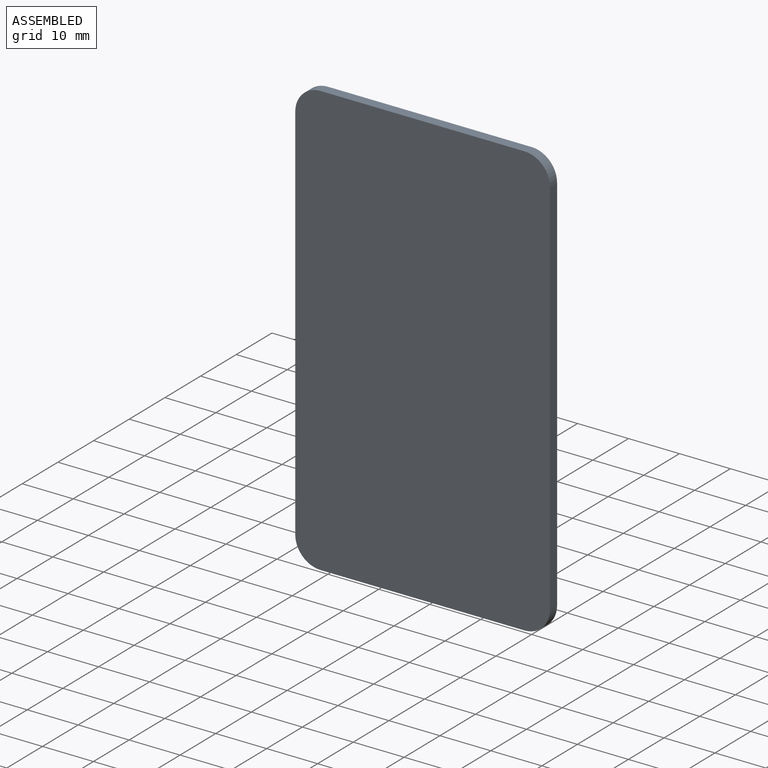
[diagram: assembled view]
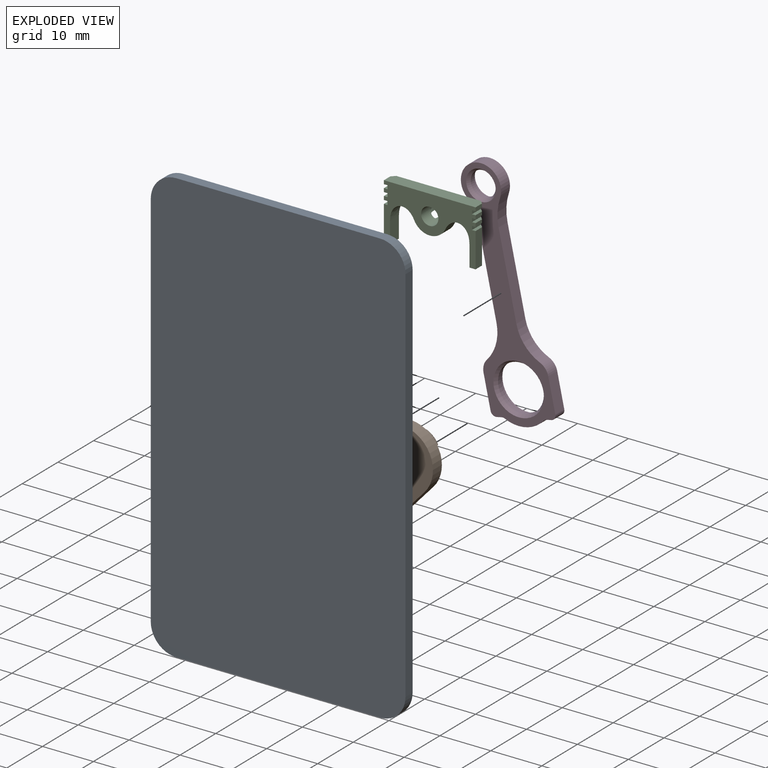
[diagram: exploded view]
GUIDED TOUR — MATED ASSEMBLY (Onshape document 1742f15612c6892b2fa58c6d, AutoMate assembly 1742f15612c6892b2fa58c6d_eaef22429a1dc8ec00ff99ad_a0c42ffdb348022e97a1b709_default)

This assembly has 4 components, labeled P0..P3 below (a component is one placed occurrence of a part; the same part can appear more than once), held together by 7 mates. A mate is a constraint between two components; its type names the relative motion it leaves free:
  CYLINDRICAL — leaves both rotation about and translation along the listed axis free,
  PLANAR — leaves sliding in the plane through the listed point (normal = the listed direction) and rotation about that normal free.
Axis/direction vectors are unit vectors and 'through' points are millimeter coordinates, both in the assembly's world frame.

MATES
  1. CYLINDRICAL "Cylindrical 4": P3 <-> P1, axis (0.000, 1.000, 0.000) through (7.40, 3.53, 8.14) mm
  2. CYLINDRICAL "Cylindrical 3": P1 <-> P0, axis (0.000, 1.000, 0.000) through (0.00, 1.00, 0.00) mm
  3. PLANAR "Planar 3": P1 <-> P3, direction (0.000, 1.000, 0.000) through (-1.61, 2.50, -1.77) mm
  4. PLANAR "Planar 4": P2 <-> P0, direction (0.000, -1.000, 0.000) through (0.00, 0.00, 42.89) mm
  5. PLANAR "Planar 2": P2 <-> P3, direction (0.000, 1.000, 0.000) through (0.00, 2.50, 43.38) mm
  6. PLANAR "Planar 1": P2 <-> P0, direction (-1.000, 0.000, 0.000) through (-9.00, 0.90, 38.75) mm
  7. CYLINDRICAL "Cylindrical 2": P3 <-> P2, axis (0.000, 1.000, 0.000) through (0.00, 3.90, 42.35) mm

ASSEMBLY ORDER
  1. P2 — the base component [order heuristic]
  2. P0 [order heuristic]
  3. P3 [order heuristic]
  4. P1 [order heuristic]
Order-tag legend:
  [order heuristic] — this assembly is geometrically interlocked (no collision-free removal order exists), so components are listed in mate-graph order; insertion feasibility is not verified.

Of the 4 components, 1 carries the full construction recipe — the FeatureScript program that regenerates the part's solid from scratch; the rest are supplied as boundary geometry only.
Each toured component is shown spotlighted twice — in the assembled view, then in the exploded view, where a leader line traces a displaced component back to its assembled socket (saturated green if recipe-attached, orange if geometry-only; every other component desaturated gray) — followed by its recipe or geometry summary and the mates that hold it.
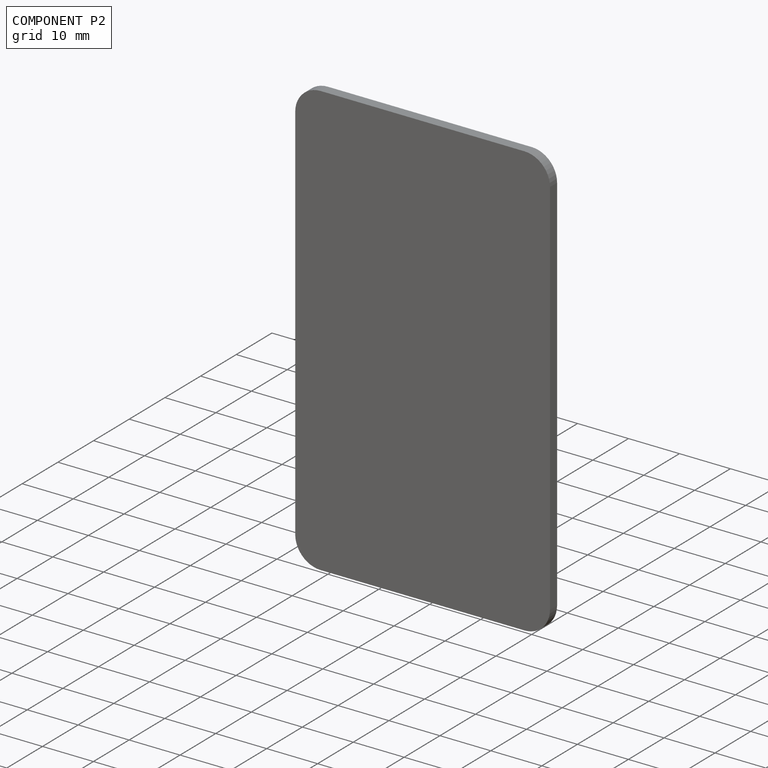
[diagram: component P2 — assembled]
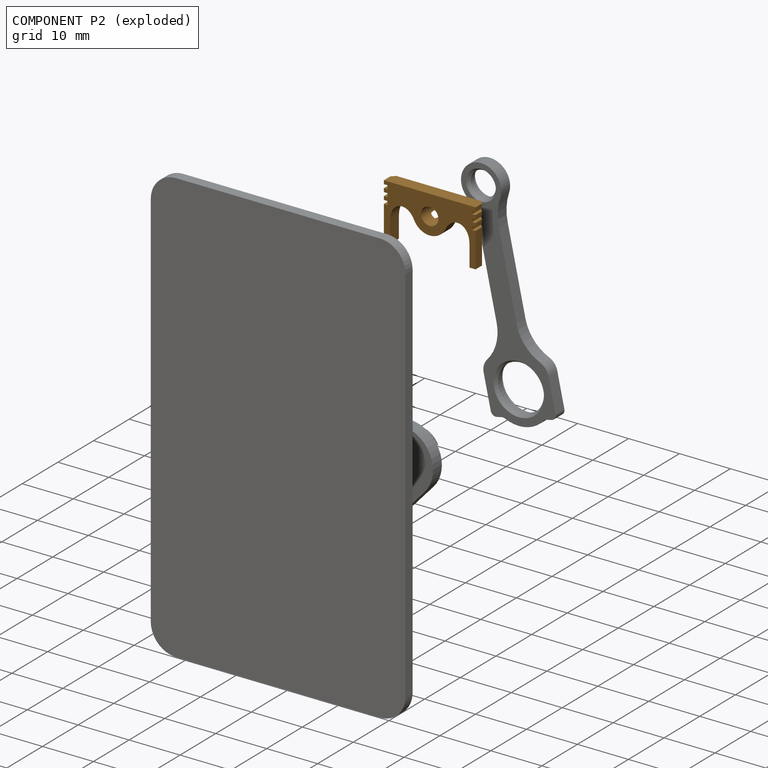
[diagram: component P2 — exploded]
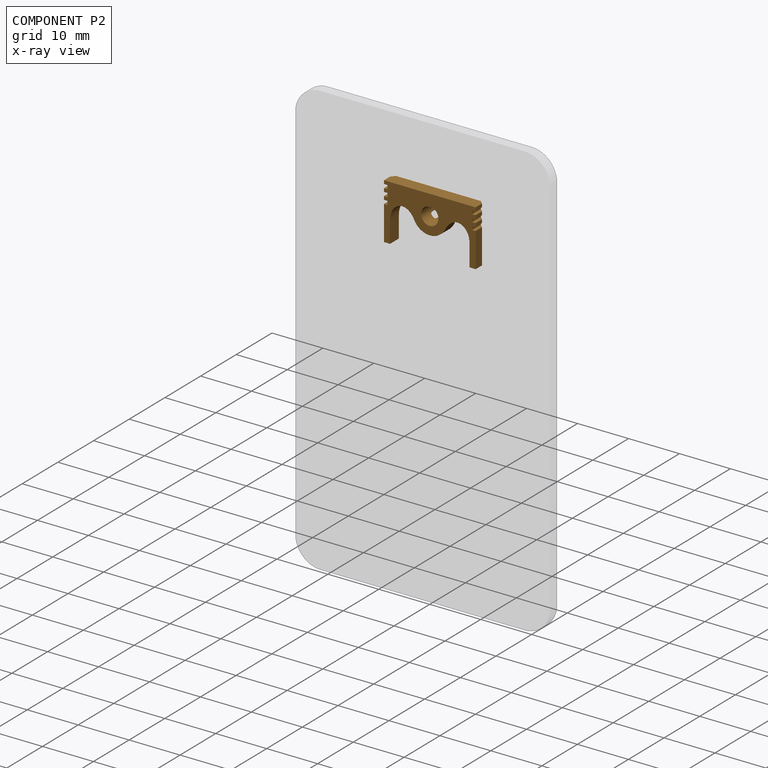
[diagram: component P2 — x-ray view]
COMPONENT P2 — geometry summary (no construction recipe available for this part):
  bounding box: 18.0 x 11.0 x 5.0 mm
  B-rep topology: 1 solid, 89 faces, 482 edges
  volume: 249 mm^3 (25% of its bounding box)
  symmetry: mirror-symmetric across its x mid-plane
Held by: PLANAR mate "Planar 4" to P0; PLANAR mate "Planar 2" to P3; PLANAR mate "Planar 1" to P0; CYLINDRICAL mate "Cylindrical 2" to P3.
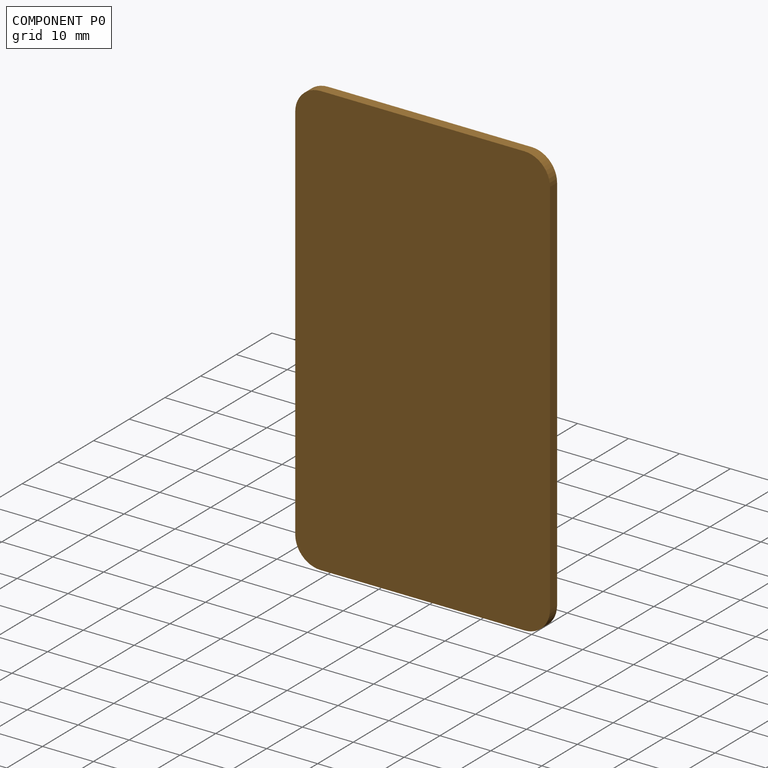
[diagram: component P0 — assembled]
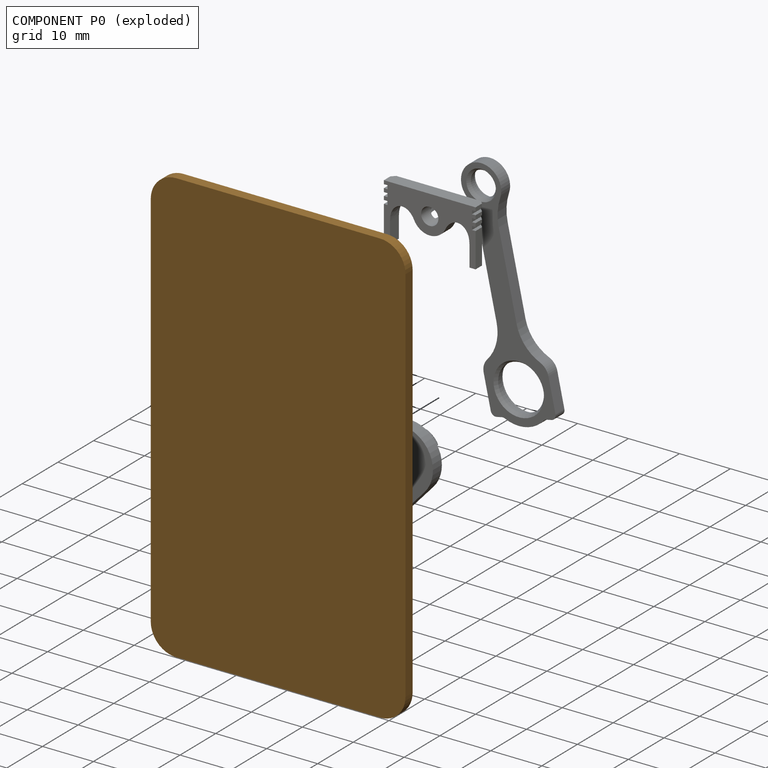
[diagram: component P0 — exploded]
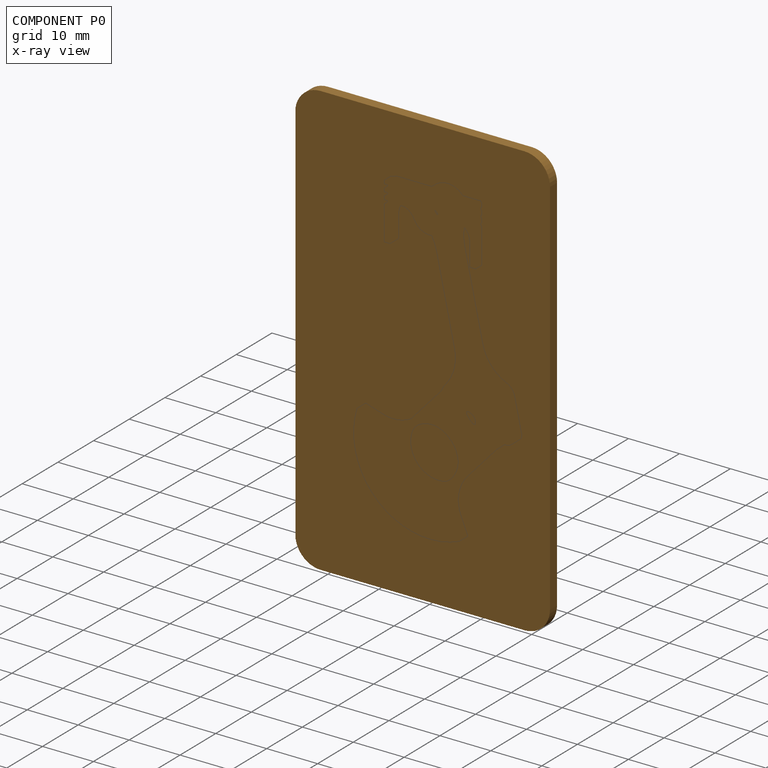
[diagram: component P0 — x-ray view]
COMPONENT P0 — geometry summary (no construction recipe available for this part):
  bounding box: 85.0 x 50.0 x 5.1 mm
  B-rep topology: 1 solid, 146 faces, 762 edges
  volume: 8818 mm^3 (41% of its bounding box)
Held by: CYLINDRICAL mate "Cylindrical 3" to P1; PLANAR mate "Planar 4" to P2; PLANAR mate "Planar 1" to P2.
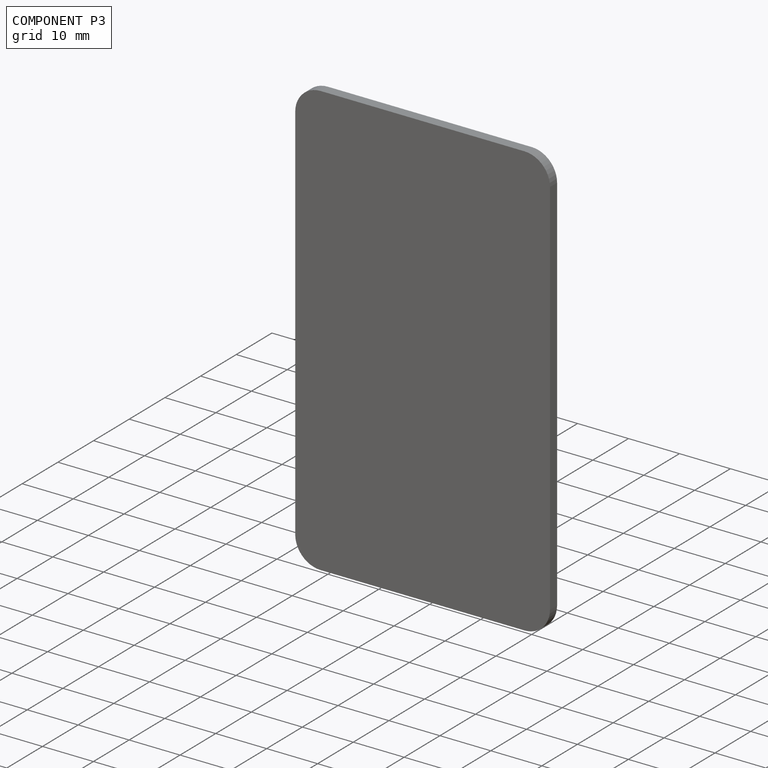
[diagram: component P3 — assembled]
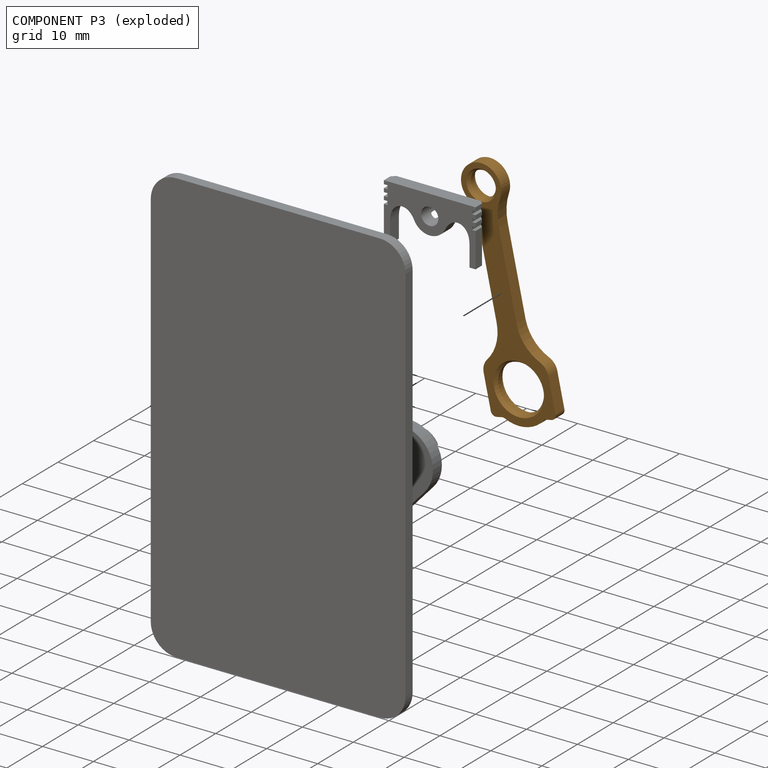
[diagram: component P3 — exploded]
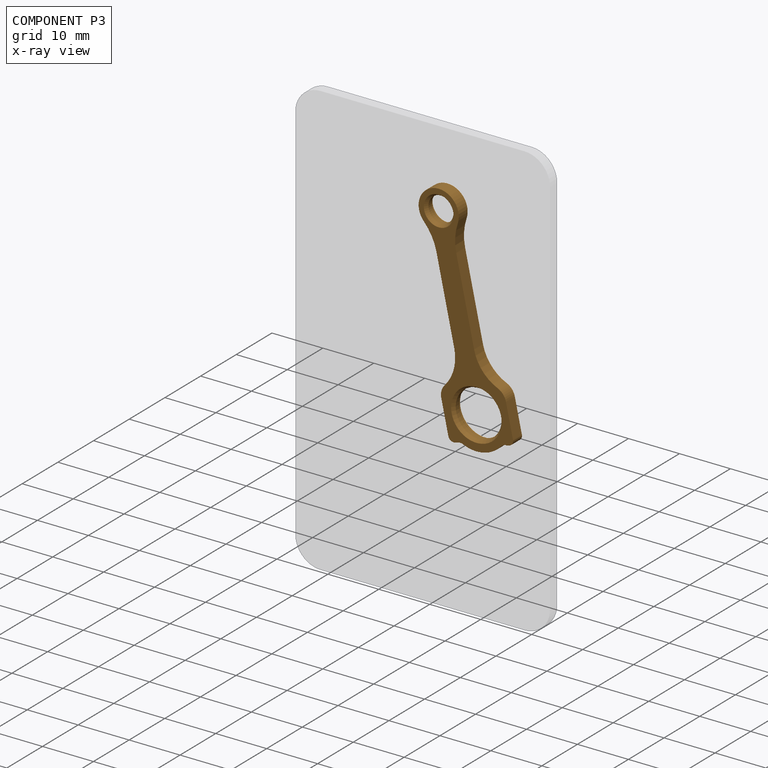
[diagram: component P3 — x-ray view]
COMPONENT P3 — geometry summary (no construction recipe available for this part):
  bounding box: 45.5 x 13.0 x 2.5 mm
  B-rep topology: 1 solid, 39 faces, 198 edges
  volume: 450 mm^3 (30% of its bounding box)
  symmetry: mirror-symmetric across its x mid-plane
Held by: CYLINDRICAL mate "Cylindrical 4" to P1; PLANAR mate "Planar 3" to P1; PLANAR mate "Planar 2" to P2; CYLINDRICAL mate "Cylindrical 2" to P2.
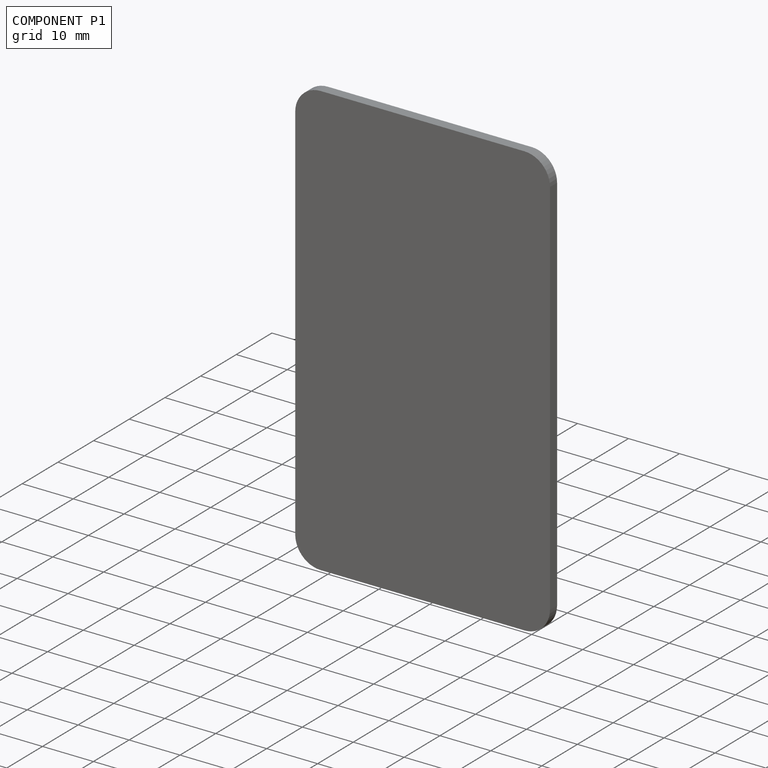
[diagram: component P1 — assembled]
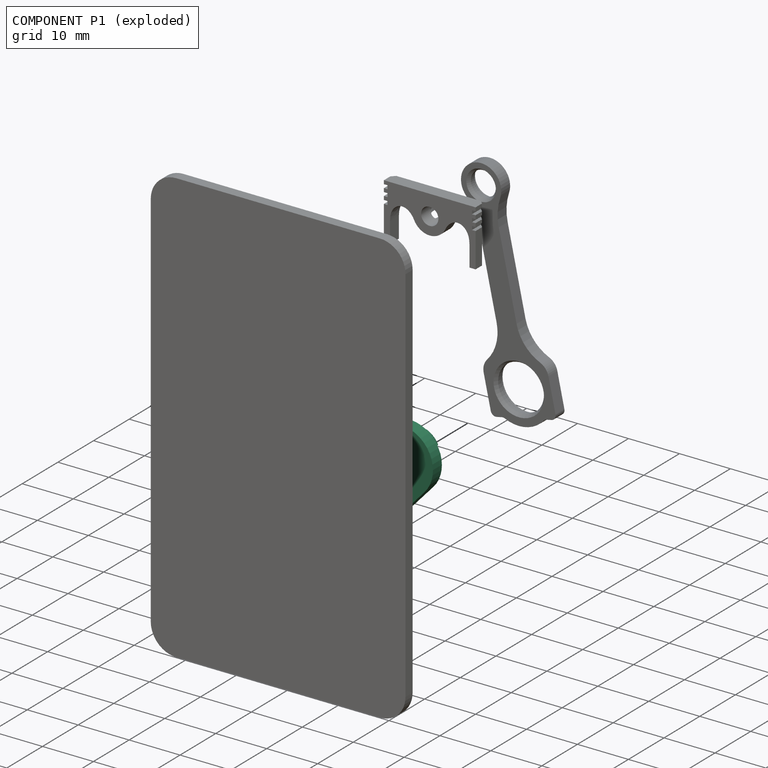
[diagram: component P1 — exploded]
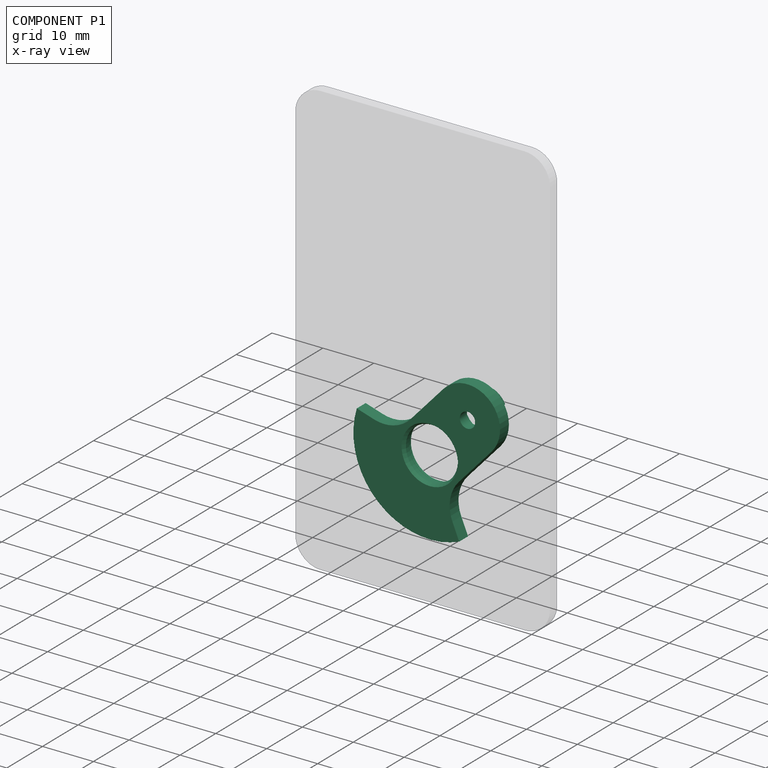
[diagram: component P1 — x-ray view]
COMPONENT P1 — recipe-attached (CADFS 00269362, mesh-verified: the recipe's output STEP matches this component's geometry to below the mesh-comparison resolution (tessellation chordal tolerance ~0.0639 mm)).
Held by: CYLINDRICAL mate "Cylindrical 4" to P3; CYLINDRICAL mate "Cylindrical 3" to P0; PLANAR mate "Planar 3" to P3.
Construction recipe (FeatureScript — the CAD program that rebuilds this solid; sketch coordinates are in the units given by the * unit suffixes, e.g. mm):

FeatureScript 1540;
import(path : "onshape/std/geometry.fs", version : "1540.0");
import(path : "onshape/std/common.fs", version : "1540.0");
const mm = millimeter;
const VERTEX = EntityType.VERTEX;
const EDGE = EntityType.EDGE;
const FACE = EntityType.FACE;
const BODY = EntityType.BODY;
function v(x, y){return vector(x, y);}
function OD(order){return orderDisambiguation(order);}
function OSD(set){return originalSetDisambiguation(set);}
function TD(topology){return topologyDisambiguation(topology);}
function TDD(query){return trueDependencyDisambiguation(query);}
function sQuery(a, b, c) {return sketchEntityQuery(a, b, c);}

annotation { "Feature Type Name" : "Feature", "Feature Type Description" : "" }
export const myFeature = defineFeature(function(context is Context, id is Id, definition is map)
    precondition{}
    {
        {
            var Q0;
            Q0=qCreatedBy(makeId("Front.planeOp"),FACE);
            var sketch = newSketch(context, id + "F0", { "sketchPlane" : qUnion([Q0])});
            skCircle(sketch, "E0", {"center": v(0, 0) * mm, "radius": 4.4 * mm});
            skLineSegment(sketch, "E1", {"start": v(0, 0) * mm, "end": v(0, 25.39) * mm, "construction": true});
            skCircle(sketch, "E2", {"center": v(0, -11) * mm, "radius": 5.1 * mm});
            skArc(sketch, "E3", {"start": v(-13.6, -17.34) * mm, "mid": v(0, -26) * mm, "end": v(13.6, -17.34) * mm});
            skLineSegment(sketch, "E4", {"start": v(-10.44, -15.87) * mm, "end": v(-13.6, -17.34) * mm});
            skLineSegment(sketch, "E5", {"start": v(-13.6, -17.34) * mm, "end": v(-10.44, -15.87) * mm});
            skLineSegment(sketch, "E6", {"start": v(13.6, -17.34) * mm, "end": v(10.44, -15.87) * mm});
            skLineSegment(sketch, "E7", {"start": v(-6.4, 0) * mm, "end": v(-6.4, -9.52) * mm});
            skArc(sketch, "E8", {"start": v(-10.44, -15.87) * mm, "mid": v(-7.5, -13.29) * mm, "end": v(-6.4, -9.52) * mm});
            skLineSegment(sketch, "E9", {"start": v(6.4, 0) * mm, "end": v(6.4, -9.52) * mm});
            skArc(sketch, "E10", {"start": v(6.4, -9.52) * mm, "mid": v(7.5, -13.29) * mm, "end": v(10.44, -15.87) * mm});
            skArc(sketch, "E11.trimOffspring", {"start": v(6.4, 0) * mm, "mid": v(0, 6.4) * mm, "end": v(-6.4, 0) * mm});
            skSolve(sketch);
        }
        {
            var Q0;
            Q0=makeQuery(id+"F0.imprint","IMPRINT",FACE,{"disambiguationData":[TD([[makeQuery(id+"F0.imprint","IMPRINT",EDGE,{"derivedFrom":sQuery(id+"F0.wireOp",EDGE,"E0")}),-1.0]])]});
            var Q1;
            Q1=makeQuery(id+"F0.imprint","IMPRINT",FACE,{"disambiguationData":[TD([[makeQuery(id+"F0.imprint","IMPRINT",EDGE,{"derivedFrom":sQuery(id+"F0.wireOp",EDGE,"E0")}),1.0]])]});
            extrude(context, id + "F1", {"entities" : qUnion([Q0, Q1]), "depth" : 2.5 * mm});
        }
        {
            var Q0;
            Q0=qCreatedBy(makeId("Top.planeOp"),FACE);
            cPlane(context, id + "F2", {"entities" : qUnion([Q0]), "cplaneType" : CPlaneType.OFFSET, "offset" : 11 * mm, "oppositeDirection" : true, "width" : 150 * mm, "height" : 150 * mm});
        }
        {
            var Q0;
            Q0=qCreatedBy(id+"F2.planeOp",FACE);
            var sketch = newSketch(context, id + "F3", { "sketchPlane" : qUnion([Q0])});
            skLineSegment(sketch, "E12.bottom", {"start": v(5, -0.8) * mm, "end": v(5.45, -0.8) * mm});
            skLineSegment(sketch, "E12.top", {"start": v(5, 0) * mm, "end": v(5.45, 0) * mm});
            skLineSegment(sketch, "E12.left", {"start": v(5, -0.8) * mm, "end": v(5, 0) * mm});
            skLineSegment(sketch, "E12.right", {"start": v(5.45, -0.8) * mm, "end": v(5.45, 0) * mm});
            skLineSegment(sketch, "E13", {"start": v(0, 0) * mm, "end": v(0, 6.8) * mm, "construction": true});
            skSolve(sketch);
        }
        {
            var Q0;
            Q0=makeQuery(id+"F3.imprint","IMPRINT",FACE,{"disambiguationData":[TD([[makeQuery(id+"F3.imprint","IMPRINT",EDGE,{"derivedFrom":sQuery(id+"F3.wireOp",EDGE,"E12.bottom")}),1.0]])]});
            var Q1;
            Q1=sQuery(id+"F3.wireOp",EDGE,"E13");
            revolve(context, id + "F4", {"operationType" : NewBodyOperationType.REMOVE, "entities" : qUnion([Q0]), "axis" : qUnion([Q1]), "revolveType" : RevolveType.FULL, "oppositeDirection" : true});
        }
        {
            var Q0;
            Q0=makeQuery(id+"F1.opExtrude","CAP_EDGE",EDGE,{"disambiguationData":[OSD([sQuery(id+"F0.wireOp",EDGE,"E2")])],"isStart":false});
            chamfer(context, id + "F5", {"entities" : qUnion([Q0]), "chamferType" : ChamferType.OFFSET_ANGLE, "width" : 0.6 * mm, "oppositeDirection" : false, "angle" : 35 * degree, "tangentPropagation" : true});
        }
        {
            var Q0;
            Q0=makeQuery(id+"F4.boolean.opBoolean","INTERSECT",EDGE,{"derivedFrom":[makeQuery(id+"F1.opExtrude","SWEPT_FACE",FACE,{"disambiguationData":[OSD([sQuery(id+"F0.wireOp",EDGE,"E2")])]}),makeQuery(id+"F4.opRevolve","SWEPT_FACE",FACE,{"disambiguationData":[OSD([sQuery(id+"F3.wireOp",EDGE,"E12.bottom")])]})]});
            fillet(context, id + "F6", {"entities" : qUnion([Q0]), "radius" : 0.3 * mm, "tangentPropagation" : true, "allowEdgeOverflow" : false});
        }
        {
            var Q0;
            Q0=qCreatedBy(makeId("Top.planeOp"),FACE);
            var sketch = newSketch(context, id + "F7", { "sketchPlane" : qUnion([Q0])});
            skLineSegment(sketch, "E14.bottom", {"start": v(3.5, -2.5) * mm, "end": v(4.4, -2.5) * mm});
            skLineSegment(sketch, "E14.top", {"start": v(3.5, 2.5) * mm, "end": v(4.4, 2.5) * mm});
            skLineSegment(sketch, "E14.left", {"start": v(3.5, -2.5) * mm, "end": v(3.5, 2.5) * mm});
            skLineSegment(sketch, "E14.right", {"start": v(4.4, -2.5) * mm, "end": v(4.4, 1.8) * mm});
            skLineSegment(sketch, "E15", {"start": v(0, 0) * mm, "end": v(0, 10.72) * mm, "construction": true});
            skLineSegment(sketch, "E16.bottom", {"start": v(4.4, 2.5) * mm, "end": v(4.8, 2.5) * mm});
            skLineSegment(sketch, "E16.top", {"start": v(4.4, 1.8) * mm, "end": v(4.8, 1.8) * mm});
            skLineSegment(sketch, "E16.right", {"start": v(4.8, 2.5) * mm, "end": v(4.8, 1.8) * mm});
            skSolve(sketch);
        }
        {
            var Q0;
            Q0=makeQuery(id+"F7.imprint","IMPRINT",FACE,{"disambiguationData":[TD([[makeQuery(id+"F7.imprint","IMPRINT",EDGE,{"derivedFrom":sQuery(id+"F7.wireOp",EDGE,"E14.bottom")}),1.0]])]});
            var Q1;
            Q1=sQuery(id+"F7.wireOp",EDGE,"E15");
            revolve(context, id + "F8", {"operationType" : NewBodyOperationType.ADD, "entities" : qUnion([Q0]), "axis" : qUnion([Q1]), "revolveType" : RevolveType.FULL});
        }
        {
            var Q0;
            Q0=makeQuery(id+"F8.opRevolve","SWEPT_EDGE",EDGE,{"disambiguationData":[OSD([sQuery(id+"F7.wireOp",EDGE,"E14.right"),sQuery(id+"F7.wireOp",EDGE,"E16.top")])]});
            fillet(context, id + "F9", {"entities" : qUnion([Q0]), "radius" : 0.3 * mm, "tangentPropagation" : true, "allowEdgeOverflow" : false});
        }
        {
            var Q0;
            Q0=makeQuery(id+"F8.opRevolve","SWEPT_EDGE",EDGE,{"disambiguationData":[OSD([sQuery(id+"F7.wireOp",EDGE,"E14.top"),sQuery(id+"F7.wireOp",EDGE,"E14.left")])]});
            chamfer(context, id + "F10", {"entities" : qUnion([Q0]), "chamferType" : ChamferType.TWO_OFFSETS, "width1" : 0.5 * mm, "oppositeDirection" : false, "width2" : 4 * mm, "tangentPropagation" : true});
        }
        {
            var Q0;
            Q0=makeQuery(id+"F8.opRevolve","SWEPT_EDGE",EDGE,{"disambiguationData":[OSD([sQuery(id+"F7.wireOp",EDGE,"E16.bottom"),sQuery(id+"F7.wireOp",EDGE,"E16.right")])]});
            chamfer(context, id + "F11", {"entities" : qUnion([Q0]), "chamferType" : ChamferType.OFFSET_ANGLE, "width" : 0.55 * mm, "oppositeDirection" : false, "angle" : 35 * degree, "tangentPropagation" : true});
        }
        {
            var Q0;
            Q0=qCreatedBy(makeId("Front.planeOp"),FACE);
            var sketch = newSketch(context, id + "F12", { "sketchPlane" : qUnion([Q0])});
            skCircle(sketch, "E17", {"center": v(0, 0) * mm, "radius": 7.5 * mm});
            skLineSegment(sketch, "E18", {"start": v(0, 0) * mm, "end": v(0, 10.84) * mm, "construction": true});
            skLineSegment(sketch, "E19", {"start": v(0, 0) * mm, "end": v(-10.38, 0) * mm, "construction": true});
            skLineSegment(sketch, "E20", {"start": v(0, 0) * mm, "end": v(-2.57, 7.05) * mm});
            skLineSegment(sketch, "E21", {"start": v(0, 0) * mm, "end": v(-4.82, 5.75) * mm});
            skLineSegment(sketch, "E22.1.0", {"start": v(0, 0) * mm, "end": v(-7.39, 1.3) * mm});
            skLineSegment(sketch, "E22.1.1", {"start": v(0, 0) * mm, "end": v(-7.39, -1.3) * mm});
            skLineSegment(sketch, "E22.2.0", {"start": v(0, 0) * mm, "end": v(-4.82, -5.75) * mm});
            skLineSegment(sketch, "E22.2.1", {"start": v(0, 0) * mm, "end": v(-2.57, -7.05) * mm});
            skLineSegment(sketch, "E22.3.0", {"start": v(0, 0) * mm, "end": v(2.57, -7.05) * mm});
            skLineSegment(sketch, "E22.3.1", {"start": v(0, 0) * mm, "end": v(4.82, -5.75) * mm});
            skLineSegment(sketch, "E22.4.0", {"start": v(0, 0) * mm, "end": v(7.39, -1.3) * mm});
            skLineSegment(sketch, "E22.4.1", {"start": v(0, 0) * mm, "end": v(7.39, 1.3) * mm});
            skLineSegment(sketch, "E22.5.0", {"start": v(0, 0) * mm, "end": v(4.82, 5.75) * mm});
            skLineSegment(sketch, "E22.5.1", {"start": v(0, 0) * mm, "end": v(2.57, 7.05) * mm});
            skSolve(sketch);
        }
        {
            var Q0;
            {var subQ0=sQuery(id+"F12.wireOp",EDGE,"E22.5.0");Q0=makeQuery(id+"F12.imprint","IMPRINT",FACE,{"disambiguationData":[TD([[makeQuery(id+"F12.imprint","IMPRINT",EDGE,{"derivedFrom":subQ0}),1.0]])]});}
            var Q1;
            {var subQ0=sQuery(id+"F12.wireOp",EDGE,"E20");Q1=makeQuery(id+"F12.imprint","IMPRINT",FACE,{"disambiguationData":[TD([[makeQuery(id+"F12.imprint","IMPRINT",EDGE,{"derivedFrom":subQ0}),1.0]])]});}
            var Q2;
            {var subQ0=sQuery(id+"F12.wireOp",EDGE,"E22.4.0");Q2=makeQuery(id+"F12.imprint","IMPRINT",FACE,{"disambiguationData":[TD([[makeQuery(id+"F12.imprint","IMPRINT",EDGE,{"derivedFrom":subQ0}),1.0]])]});}
            var Q3;
            {var subQ0=sQuery(id+"F12.wireOp",EDGE,"E22.3.0");Q3=makeQuery(id+"F12.imprint","IMPRINT",FACE,{"disambiguationData":[TD([[makeQuery(id+"F12.imprint","IMPRINT",EDGE,{"derivedFrom":subQ0}),1.0]])]});}
            var Q4;
            {var subQ0=sQuery(id+"F12.wireOp",EDGE,"E22.2.0");Q4=makeQuery(id+"F12.imprint","IMPRINT",FACE,{"disambiguationData":[TD([[makeQuery(id+"F12.imprint","IMPRINT",EDGE,{"derivedFrom":subQ0}),1.0]])]});}
            var Q5;
            {var subQ0=sQuery(id+"F12.wireOp",EDGE,"E22.1.0");Q5=makeQuery(id+"F12.imprint","IMPRINT",FACE,{"disambiguationData":[TD([[makeQuery(id+"F12.imprint","IMPRINT",EDGE,{"derivedFrom":subQ0}),1.0]])]});}
            extrude(context, id + "F13", {"entities" : qUnion([Q0, Q1, Q2, Q3, Q4, Q5]), "operationType" : NewBodyOperationType.REMOVE, "endBound" : BoundingType.THROUGH_ALL, "oppositeDirection" : true, "depth" : 25 * mm});
        }
        {
            var Q0;
            Q0=makeQuery(id+"F13.boolean.opBoolean","COPY",EDGE,{"derivedFrom":makeQuery(id+"F13.opExtrude","CAP_EDGE",EDGE,{"disambiguationData":[OSD([sQuery(id+"F12.wireOp",EDGE,"E22.4.1")])],"isStart":true})});
            var Q1;
            Q1=makeQuery(id+"F13.boolean.opBoolean","COPY",EDGE,{"derivedFrom":makeQuery(id+"F13.opExtrude","CAP_EDGE",EDGE,{"disambiguationData":[OSD([sQuery(id+"F12.wireOp",EDGE,"E22.4.0")])],"isStart":true})});
            var Q2;
            Q2=makeQuery(id+"F13.boolean.opBoolean","COPY",EDGE,{"derivedFrom":makeQuery(id+"F13.opExtrude","CAP_EDGE",EDGE,{"disambiguationData":[OSD([sQuery(id+"F12.wireOp",EDGE,"E22.5.0")])],"isStart":true})});
            var Q3;
            Q3=makeQuery(id+"F13.boolean.opBoolean","COPY",EDGE,{"derivedFrom":makeQuery(id+"F13.opExtrude","CAP_EDGE",EDGE,{"disambiguationData":[OSD([sQuery(id+"F12.wireOp",EDGE,"E22.5.1")])],"isStart":true})});
            var Q4;
            Q4=makeQuery(id+"F13.boolean.opBoolean","COPY",EDGE,{"derivedFrom":makeQuery(id+"F13.opExtrude","CAP_EDGE",EDGE,{"disambiguationData":[OSD([sQuery(id+"F12.wireOp",EDGE,"E20")])],"isStart":true})});
            var Q5;
            Q5=makeQuery(id+"F13.boolean.opBoolean","COPY",EDGE,{"derivedFrom":makeQuery(id+"F13.opExtrude","CAP_EDGE",EDGE,{"disambiguationData":[OSD([sQuery(id+"F12.wireOp",EDGE,"E21")])],"isStart":true})});
            var Q6;
            Q6=makeQuery(id+"F13.boolean.opBoolean","COPY",EDGE,{"derivedFrom":makeQuery(id+"F13.opExtrude","CAP_EDGE",EDGE,{"disambiguationData":[OSD([sQuery(id+"F12.wireOp",EDGE,"E22.1.0")])],"isStart":true})});
            var Q7;
            Q7=makeQuery(id+"F13.boolean.opBoolean","COPY",EDGE,{"derivedFrom":makeQuery(id+"F13.opExtrude","CAP_EDGE",EDGE,{"disambiguationData":[OSD([sQuery(id+"F12.wireOp",EDGE,"E22.1.1")])],"isStart":true})});
            var Q8;
            Q8=makeQuery(id+"F13.boolean.opBoolean","COPY",EDGE,{"derivedFrom":makeQuery(id+"F13.opExtrude","CAP_EDGE",EDGE,{"disambiguationData":[OSD([sQuery(id+"F12.wireOp",EDGE,"E22.2.0")])],"isStart":true})});
            var Q9;
            Q9=makeQuery(id+"F13.boolean.opBoolean","COPY",EDGE,{"derivedFrom":makeQuery(id+"F13.opExtrude","CAP_EDGE",EDGE,{"disambiguationData":[OSD([sQuery(id+"F12.wireOp",EDGE,"E22.2.1")])],"isStart":true})});
            var Q10;
            Q10=makeQuery(id+"F13.boolean.opBoolean","COPY",EDGE,{"derivedFrom":makeQuery(id+"F13.opExtrude","CAP_EDGE",EDGE,{"disambiguationData":[OSD([sQuery(id+"F12.wireOp",EDGE,"E22.3.0")])],"isStart":true})});
            var Q11;
            Q11=makeQuery(id+"F13.boolean.opBoolean","COPY",EDGE,{"derivedFrom":makeQuery(id+"F13.opExtrude","CAP_EDGE",EDGE,{"disambiguationData":[OSD([sQuery(id+"F12.wireOp",EDGE,"E22.3.1")])],"isStart":true})});
            var Q12;
            {var subQ1=makeQuery(id+"F1.opExtrude","CAP_FACE",FACE,{"disambiguationData":[OSD([sQuery(id+"F0.wireOp",EDGE,"E2"),sQuery(id+"F0.wireOp",EDGE,"E3"),sQuery(id+"F0.wireOp",EDGE,"E5"),sQuery(id+"F0.wireOp",EDGE,"E6"),sQuery(id+"F0.wireOp",EDGE,"E7"),sQuery(id+"F0.wireOp",EDGE,"E8"),sQuery(id+"F0.wireOp",EDGE,"E9"),sQuery(id+"F0.wireOp",EDGE,"E10"),sQuery(id+"F0.wireOp",EDGE,"E11.trimOffspring")])],"isStart":true});var subQ2=makeQuery(id+"F8.opRevolve","SWEPT_FACE",FACE,{"disambiguationData":[OSD([sQuery(id+"F7.wireOp",EDGE,"E14.right")])]});var subQ3=sQuery(id+"F12.wireOp",EDGE,"E22.3.1");Q12=makeQuery(id+"F13.boolean.opBoolean","SPLIT",EDGE,{"disambiguationData":[TD([makeQuery(id+"F13.opExtrude","SWEPT_FACE",FACE,{"disambiguationData":[OSD([subQ3])]})])],"derivedFrom":makeQuery(id+"F8.boolean.opBoolean","INTERSECT",EDGE,{"derivedFrom":[subQ1,subQ2]})});}
            var Q13;
            {var subQ1=sQuery(id+"F7.wireOp",EDGE,"E14.left");var subQ2=sQuery(id+"F7.wireOp",EDGE,"E14.top");var subQ3=makeQuery(id+"F1.opExtrude","CAP_FACE",FACE,{"disambiguationData":[OSD([sQuery(id+"F0.wireOp",EDGE,"E2"),sQuery(id+"F0.wireOp",EDGE,"E3"),sQuery(id+"F0.wireOp",EDGE,"E5"),sQuery(id+"F0.wireOp",EDGE,"E6"),sQuery(id+"F0.wireOp",EDGE,"E7"),sQuery(id+"F0.wireOp",EDGE,"E8"),sQuery(id+"F0.wireOp",EDGE,"E9"),sQuery(id+"F0.wireOp",EDGE,"E10"),sQuery(id+"F0.wireOp",EDGE,"E11.trimOffspring")])],"isStart":true});var subQ4=sQuery(id+"F12.wireOp",EDGE,"E22.3.1");Q13=makeQuery(id+"F13.boolean.opBoolean","SPLIT",EDGE,{"disambiguationData":[TD([makeQuery(id+"F13.opExtrude","SWEPT_FACE",FACE,{"disambiguationData":[OSD([subQ4])]})])],"derivedFrom":makeQuery(id+"F10.opChamfer","BLEND_EDGE",EDGE,{"blendedFrom":[makeQuery(id+"F8.opRevolve","SWEPT_EDGE",EDGE,{"disambiguationData":[OSD([subQ2,subQ1])]}),makeQuery(id+"F8.boolean.opBoolean","SPLIT",FACE,{"disambiguationData":[TD([makeQuery(id+"F8.opRevolve","SWEPT_FACE",FACE,{"disambiguationData":[OSD([subQ1])]})])],"derivedFrom":subQ3})],"blendedInto":[makeQuery(id+"F8.boolean.opBoolean","SPLIT",FACE,{"disambiguationData":[TD([makeQuery(id+"F8.opRevolve","SWEPT_FACE",FACE,{"disambiguationData":[OSD([subQ1])]})])],"derivedFrom":subQ3})]})});}
            var Q14;
            {var subQ1=sQuery(id+"F7.wireOp",EDGE,"E14.left");var subQ2=sQuery(id+"F7.wireOp",EDGE,"E14.top");var subQ4=makeQuery(id+"F1.opExtrude","CAP_FACE",FACE,{"disambiguationData":[OSD([sQuery(id+"F0.wireOp",EDGE,"E2"),sQuery(id+"F0.wireOp",EDGE,"E3"),sQuery(id+"F0.wireOp",EDGE,"E5"),sQuery(id+"F0.wireOp",EDGE,"E6"),sQuery(id+"F0.wireOp",EDGE,"E7"),sQuery(id+"F0.wireOp",EDGE,"E8"),sQuery(id+"F0.wireOp",EDGE,"E9"),sQuery(id+"F0.wireOp",EDGE,"E10"),sQuery(id+"F0.wireOp",EDGE,"E11.trimOffspring")])],"isStart":true});var subQ5=sQuery(id+"F12.wireOp",EDGE,"E22.4.1");Q14=makeQuery(id+"F13.boolean.opBoolean","SPLIT",EDGE,{"disambiguationData":[TD([makeQuery(id+"F13.opExtrude","SWEPT_FACE",FACE,{"disambiguationData":[OSD([subQ5])]})])],"derivedFrom":makeQuery(id+"F10.opChamfer","BLEND_EDGE",EDGE,{"blendedFrom":[makeQuery(id+"F8.opRevolve","SWEPT_EDGE",EDGE,{"disambiguationData":[OSD([subQ2,subQ1])]}),makeQuery(id+"F8.boolean.opBoolean","SPLIT",FACE,{"disambiguationData":[TD([makeQuery(id+"F8.opRevolve","SWEPT_FACE",FACE,{"disambiguationData":[OSD([subQ1])]})])],"derivedFrom":subQ4})],"blendedInto":[makeQuery(id+"F8.boolean.opBoolean","SPLIT",FACE,{"disambiguationData":[TD([makeQuery(id+"F8.opRevolve","SWEPT_FACE",FACE,{"disambiguationData":[OSD([subQ1])]})])],"derivedFrom":subQ4})]})});}
            var Q15;
            {var subQ0=sQuery(id+"F12.wireOp",EDGE,"E20");var subQ2=sQuery(id+"F7.wireOp",EDGE,"E14.left");var subQ3=sQuery(id+"F7.wireOp",EDGE,"E14.top");var subQ5=makeQuery(id+"F1.opExtrude","CAP_FACE",FACE,{"disambiguationData":[OSD([sQuery(id+"F0.wireOp",EDGE,"E2"),sQuery(id+"F0.wireOp",EDGE,"E3"),sQuery(id+"F0.wireOp",EDGE,"E5"),sQuery(id+"F0.wireOp",EDGE,"E6"),sQuery(id+"F0.wireOp",EDGE,"E7"),sQuery(id+"F0.wireOp",EDGE,"E8"),sQuery(id+"F0.wireOp",EDGE,"E9"),sQuery(id+"F0.wireOp",EDGE,"E10"),sQuery(id+"F0.wireOp",EDGE,"E11.trimOffspring")])],"isStart":true});Q15=makeQuery(id+"F13.boolean.opBoolean","SPLIT",EDGE,{"disambiguationData":[TD([makeQuery(id+"F13.opExtrude","SWEPT_FACE",FACE,{"disambiguationData":[OSD([subQ0])]})])],"derivedFrom":makeQuery(id+"F10.opChamfer","BLEND_EDGE",EDGE,{"blendedFrom":[makeQuery(id+"F8.opRevolve","SWEPT_EDGE",EDGE,{"disambiguationData":[OSD([subQ3,subQ2])]}),makeQuery(id+"F8.boolean.opBoolean","SPLIT",FACE,{"disambiguationData":[TD([makeQuery(id+"F8.opRevolve","SWEPT_FACE",FACE,{"disambiguationData":[OSD([subQ2])]})])],"derivedFrom":subQ5})],"blendedInto":[makeQuery(id+"F8.boolean.opBoolean","SPLIT",FACE,{"disambiguationData":[TD([makeQuery(id+"F8.opRevolve","SWEPT_FACE",FACE,{"disambiguationData":[OSD([subQ2])]})])],"derivedFrom":subQ5})]})});}
            var Q16;
            {var subQ0=sQuery(id+"F12.wireOp",EDGE,"E21");var subQ2=sQuery(id+"F7.wireOp",EDGE,"E14.left");var subQ3=sQuery(id+"F7.wireOp",EDGE,"E14.top");var subQ4=makeQuery(id+"F1.opExtrude","CAP_FACE",FACE,{"disambiguationData":[OSD([sQuery(id+"F0.wireOp",EDGE,"E2"),sQuery(id+"F0.wireOp",EDGE,"E3"),sQuery(id+"F0.wireOp",EDGE,"E5"),sQuery(id+"F0.wireOp",EDGE,"E6"),sQuery(id+"F0.wireOp",EDGE,"E7"),sQuery(id+"F0.wireOp",EDGE,"E8"),sQuery(id+"F0.wireOp",EDGE,"E9"),sQuery(id+"F0.wireOp",EDGE,"E10"),sQuery(id+"F0.wireOp",EDGE,"E11.trimOffspring")])],"isStart":true});Q16=makeQuery(id+"F13.boolean.opBoolean","SPLIT",EDGE,{"disambiguationData":[TD([makeQuery(id+"F13.opExtrude","SWEPT_FACE",FACE,{"disambiguationData":[OSD([subQ0])]})])],"derivedFrom":makeQuery(id+"F10.opChamfer","BLEND_EDGE",EDGE,{"blendedFrom":[makeQuery(id+"F8.opRevolve","SWEPT_EDGE",EDGE,{"disambiguationData":[OSD([subQ3,subQ2])]}),makeQuery(id+"F8.boolean.opBoolean","SPLIT",FACE,{"disambiguationData":[TD([makeQuery(id+"F8.opRevolve","SWEPT_FACE",FACE,{"disambiguationData":[OSD([subQ2])]})])],"derivedFrom":subQ4})],"blendedInto":[makeQuery(id+"F8.boolean.opBoolean","SPLIT",FACE,{"disambiguationData":[TD([makeQuery(id+"F8.opRevolve","SWEPT_FACE",FACE,{"disambiguationData":[OSD([subQ2])]})])],"derivedFrom":subQ4})]})});}
            var Q17;
            {var subQ1=sQuery(id+"F7.wireOp",EDGE,"E14.left");var subQ2=sQuery(id+"F7.wireOp",EDGE,"E14.top");var subQ3=makeQuery(id+"F1.opExtrude","CAP_FACE",FACE,{"disambiguationData":[OSD([sQuery(id+"F0.wireOp",EDGE,"E2"),sQuery(id+"F0.wireOp",EDGE,"E3"),sQuery(id+"F0.wireOp",EDGE,"E5"),sQuery(id+"F0.wireOp",EDGE,"E6"),sQuery(id+"F0.wireOp",EDGE,"E7"),sQuery(id+"F0.wireOp",EDGE,"E8"),sQuery(id+"F0.wireOp",EDGE,"E9"),sQuery(id+"F0.wireOp",EDGE,"E10"),sQuery(id+"F0.wireOp",EDGE,"E11.trimOffspring")])],"isStart":true});var subQ5=sQuery(id+"F12.wireOp",EDGE,"E22.1.1");Q17=makeQuery(id+"F13.boolean.opBoolean","SPLIT",EDGE,{"disambiguationData":[TD([makeQuery(id+"F13.opExtrude","SWEPT_FACE",FACE,{"disambiguationData":[OSD([subQ5])]})])],"derivedFrom":makeQuery(id+"F10.opChamfer","BLEND_EDGE",EDGE,{"blendedFrom":[makeQuery(id+"F8.opRevolve","SWEPT_EDGE",EDGE,{"disambiguationData":[OSD([subQ2,subQ1])]}),makeQuery(id+"F8.boolean.opBoolean","SPLIT",FACE,{"disambiguationData":[TD([makeQuery(id+"F8.opRevolve","SWEPT_FACE",FACE,{"disambiguationData":[OSD([subQ1])]})])],"derivedFrom":subQ3})],"blendedInto":[makeQuery(id+"F8.boolean.opBoolean","SPLIT",FACE,{"disambiguationData":[TD([makeQuery(id+"F8.opRevolve","SWEPT_FACE",FACE,{"disambiguationData":[OSD([subQ1])]})])],"derivedFrom":subQ3})]})});}
            var Q18;
            {var subQ1=sQuery(id+"F7.wireOp",EDGE,"E14.left");var subQ2=sQuery(id+"F7.wireOp",EDGE,"E14.top");var subQ3=makeQuery(id+"F1.opExtrude","CAP_FACE",FACE,{"disambiguationData":[OSD([sQuery(id+"F0.wireOp",EDGE,"E2"),sQuery(id+"F0.wireOp",EDGE,"E3"),sQuery(id+"F0.wireOp",EDGE,"E5"),sQuery(id+"F0.wireOp",EDGE,"E6"),sQuery(id+"F0.wireOp",EDGE,"E7"),sQuery(id+"F0.wireOp",EDGE,"E8"),sQuery(id+"F0.wireOp",EDGE,"E9"),sQuery(id+"F0.wireOp",EDGE,"E10"),sQuery(id+"F0.wireOp",EDGE,"E11.trimOffspring")])],"isStart":true});var subQ4=sQuery(id+"F12.wireOp",EDGE,"E22.2.1");Q18=makeQuery(id+"F13.boolean.opBoolean","SPLIT",EDGE,{"disambiguationData":[TD([makeQuery(id+"F13.opExtrude","SWEPT_FACE",FACE,{"disambiguationData":[OSD([subQ4])]})])],"derivedFrom":makeQuery(id+"F10.opChamfer","BLEND_EDGE",EDGE,{"blendedFrom":[makeQuery(id+"F8.opRevolve","SWEPT_EDGE",EDGE,{"disambiguationData":[OSD([subQ2,subQ1])]}),makeQuery(id+"F8.boolean.opBoolean","SPLIT",FACE,{"disambiguationData":[TD([makeQuery(id+"F8.opRevolve","SWEPT_FACE",FACE,{"disambiguationData":[OSD([subQ1])]})])],"derivedFrom":subQ3})],"blendedInto":[makeQuery(id+"F8.boolean.opBoolean","SPLIT",FACE,{"disambiguationData":[TD([makeQuery(id+"F8.opRevolve","SWEPT_FACE",FACE,{"disambiguationData":[OSD([subQ1])]})])],"derivedFrom":subQ3})]})});}
            var Q19;
            {var subQ1=makeQuery(id+"F1.opExtrude","CAP_FACE",FACE,{"disambiguationData":[OSD([sQuery(id+"F0.wireOp",EDGE,"E2"),sQuery(id+"F0.wireOp",EDGE,"E3"),sQuery(id+"F0.wireOp",EDGE,"E5"),sQuery(id+"F0.wireOp",EDGE,"E6"),sQuery(id+"F0.wireOp",EDGE,"E7"),sQuery(id+"F0.wireOp",EDGE,"E8"),sQuery(id+"F0.wireOp",EDGE,"E9"),sQuery(id+"F0.wireOp",EDGE,"E10"),sQuery(id+"F0.wireOp",EDGE,"E11.trimOffspring")])],"isStart":true});var subQ2=sQuery(id+"F12.wireOp",EDGE,"E22.2.1");var subQ3=makeQuery(id+"F8.opRevolve","SWEPT_FACE",FACE,{"disambiguationData":[OSD([sQuery(id+"F7.wireOp",EDGE,"E14.right")])]});Q19=makeQuery(id+"F13.boolean.opBoolean","SPLIT",EDGE,{"disambiguationData":[TD([makeQuery(id+"F13.opExtrude","SWEPT_FACE",FACE,{"disambiguationData":[OSD([subQ2])]})])],"derivedFrom":makeQuery(id+"F8.boolean.opBoolean","INTERSECT",EDGE,{"derivedFrom":[subQ1,subQ3]})});}
            var Q20;
            {var subQ1=makeQuery(id+"F1.opExtrude","CAP_FACE",FACE,{"disambiguationData":[OSD([sQuery(id+"F0.wireOp",EDGE,"E2"),sQuery(id+"F0.wireOp",EDGE,"E3"),sQuery(id+"F0.wireOp",EDGE,"E5"),sQuery(id+"F0.wireOp",EDGE,"E6"),sQuery(id+"F0.wireOp",EDGE,"E7"),sQuery(id+"F0.wireOp",EDGE,"E8"),sQuery(id+"F0.wireOp",EDGE,"E9"),sQuery(id+"F0.wireOp",EDGE,"E10"),sQuery(id+"F0.wireOp",EDGE,"E11.trimOffspring")])],"isStart":true});var subQ3=makeQuery(id+"F8.opRevolve","SWEPT_FACE",FACE,{"disambiguationData":[OSD([sQuery(id+"F7.wireOp",EDGE,"E14.right")])]});var subQ4=sQuery(id+"F12.wireOp",EDGE,"E22.1.1");Q20=makeQuery(id+"F13.boolean.opBoolean","SPLIT",EDGE,{"disambiguationData":[TD([makeQuery(id+"F13.opExtrude","SWEPT_FACE",FACE,{"disambiguationData":[OSD([subQ4])]})])],"derivedFrom":makeQuery(id+"F8.boolean.opBoolean","INTERSECT",EDGE,{"derivedFrom":[subQ1,subQ3]})});}
            var Q21;
            {var subQ1=makeQuery(id+"F1.opExtrude","CAP_FACE",FACE,{"disambiguationData":[OSD([sQuery(id+"F0.wireOp",EDGE,"E2"),sQuery(id+"F0.wireOp",EDGE,"E3"),sQuery(id+"F0.wireOp",EDGE,"E5"),sQuery(id+"F0.wireOp",EDGE,"E6"),sQuery(id+"F0.wireOp",EDGE,"E7"),sQuery(id+"F0.wireOp",EDGE,"E8"),sQuery(id+"F0.wireOp",EDGE,"E9"),sQuery(id+"F0.wireOp",EDGE,"E10"),sQuery(id+"F0.wireOp",EDGE,"E11.trimOffspring")])],"isStart":true});var subQ2=sQuery(id+"F12.wireOp",EDGE,"E21");var subQ3=makeQuery(id+"F8.opRevolve","SWEPT_FACE",FACE,{"disambiguationData":[OSD([sQuery(id+"F7.wireOp",EDGE,"E14.right")])]});Q21=makeQuery(id+"F13.boolean.opBoolean","SPLIT",EDGE,{"disambiguationData":[TD([makeQuery(id+"F13.opExtrude","SWEPT_FACE",FACE,{"disambiguationData":[OSD([subQ2])]})])],"derivedFrom":makeQuery(id+"F8.boolean.opBoolean","INTERSECT",EDGE,{"derivedFrom":[subQ1,subQ3]})});}
            var Q22;
            {var subQ2=makeQuery(id+"F1.opExtrude","CAP_FACE",FACE,{"disambiguationData":[OSD([sQuery(id+"F0.wireOp",EDGE,"E2"),sQuery(id+"F0.wireOp",EDGE,"E3"),sQuery(id+"F0.wireOp",EDGE,"E5"),sQuery(id+"F0.wireOp",EDGE,"E6"),sQuery(id+"F0.wireOp",EDGE,"E7"),sQuery(id+"F0.wireOp",EDGE,"E8"),sQuery(id+"F0.wireOp",EDGE,"E9"),sQuery(id+"F0.wireOp",EDGE,"E10"),sQuery(id+"F0.wireOp",EDGE,"E11.trimOffspring")])],"isStart":true});var subQ3=sQuery(id+"F12.wireOp",EDGE,"E20");var subQ4=makeQuery(id+"F8.opRevolve","SWEPT_FACE",FACE,{"disambiguationData":[OSD([sQuery(id+"F7.wireOp",EDGE,"E14.right")])]});Q22=makeQuery(id+"F13.boolean.opBoolean","SPLIT",EDGE,{"disambiguationData":[TD([makeQuery(id+"F13.opExtrude","SWEPT_FACE",FACE,{"disambiguationData":[OSD([subQ3])]})])],"derivedFrom":makeQuery(id+"F8.boolean.opBoolean","INTERSECT",EDGE,{"derivedFrom":[subQ2,subQ4]})});}
            var Q23;
            {var subQ2=makeQuery(id+"F1.opExtrude","CAP_FACE",FACE,{"disambiguationData":[OSD([sQuery(id+"F0.wireOp",EDGE,"E2"),sQuery(id+"F0.wireOp",EDGE,"E3"),sQuery(id+"F0.wireOp",EDGE,"E5"),sQuery(id+"F0.wireOp",EDGE,"E6"),sQuery(id+"F0.wireOp",EDGE,"E7"),sQuery(id+"F0.wireOp",EDGE,"E8"),sQuery(id+"F0.wireOp",EDGE,"E9"),sQuery(id+"F0.wireOp",EDGE,"E10"),sQuery(id+"F0.wireOp",EDGE,"E11.trimOffspring")])],"isStart":true});var subQ3=makeQuery(id+"F8.opRevolve","SWEPT_FACE",FACE,{"disambiguationData":[OSD([sQuery(id+"F7.wireOp",EDGE,"E14.right")])]});var subQ4=sQuery(id+"F12.wireOp",EDGE,"E22.4.1");Q23=makeQuery(id+"F13.boolean.opBoolean","SPLIT",EDGE,{"disambiguationData":[TD([makeQuery(id+"F13.opExtrude","SWEPT_FACE",FACE,{"disambiguationData":[OSD([subQ4])]})])],"derivedFrom":makeQuery(id+"F8.boolean.opBoolean","INTERSECT",EDGE,{"derivedFrom":[subQ2,subQ3]})});}
            fillet(context, id + "F14", {"entities" : qUnion([Q0, Q1, Q2, Q3, Q4, Q5, Q6, Q7, Q8, Q9, Q10, Q11, Q12, Q13, Q14, Q15, Q16, Q17, Q18, Q19, Q20, Q21, Q22, Q23]), "radius" : 0.3 * mm, "tangentPropagation" : true, "allowEdgeOverflow" : false});
        }
        {
            var Q0;
            Q0=qCreatedBy(makeId("Top.planeOp"),FACE);
            var sketch = newSketch(context, id + "F15", { "sketchPlane" : qUnion([Q0])});
            skLineSegment(sketch, "E23", {"start": v(0, -2) * mm, "end": v(0, 59.52) * mm, "construction": true});
            skLineSegment(sketch, "E24.bottom", {"start": v(0, -2) * mm, "end": v(1.5, -2) * mm});
            skLineSegment(sketch, "E24.top", {"start": v(0, 8) * mm, "end": v(1.5, 8) * mm});
            skLineSegment(sketch, "E24.left", {"start": v(0, -2) * mm, "end": v(0, 8) * mm});
            skLineSegment(sketch, "E24.right", {"start": v(1.5, -2) * mm, "end": v(1.5, 8) * mm});
            skSolve(sketch);
        }
        {
            var Q0;
            Q0=qCreatedBy(makeId("Top.planeOp"),FACE);
            var sketch = newSketch(context, id + "F16", { "sketchPlane" : qUnion([Q0])});
            skLineSegment(sketch, "E25.bottom", {"start": v(0, 10) * mm, "end": v(1.5, 10) * mm});
            skLineSegment(sketch, "E25.top", {"start": v(0, -10) * mm, "end": v(1.5, -10) * mm});
            skLineSegment(sketch, "E25.left", {"start": v(0, 10) * mm, "end": v(0, -10) * mm});
            skLineSegment(sketch, "E25.right", {"start": v(1.5, 10) * mm, "end": v(1.5, -10) * mm});
            skSolve(sketch);
        }
        {
            var Q0;
            Q0=makeQuery(id+"F16.imprint","IMPRINT",FACE,{"disambiguationData":[TD([[makeQuery(id+"F16.imprint","IMPRINT",EDGE,{"derivedFrom":sQuery(id+"F16.wireOp",EDGE,"E25.bottom")}),-1.0]])]});
            var Q1;
            Q1=sQuery(id+"F16.wireOp",EDGE,"E25.left");
            revolve(context, id + "F17", {"operationType" : NewBodyOperationType.REMOVE, "entities" : qUnion([Q0]), "axis" : qUnion([Q1]), "revolveType" : RevolveType.FULL, "oppositeDirection" : true});
        }
        {
            var Q0;
            {var subQ0=sQuery(id+"F12.wireOp",EDGE,"E17");var subQ1=sQuery(id+"F0.wireOp",EDGE,"E11.trimOffspring");var subQ2=sQuery(id+"F0.wireOp",EDGE,"E10");var subQ3=sQuery(id+"F0.wireOp",EDGE,"E9");var subQ4=sQuery(id+"F0.wireOp",EDGE,"E8");var subQ5=sQuery(id+"F0.wireOp",EDGE,"E7");var subQ6=sQuery(id+"F0.wireOp",EDGE,"E6");var subQ7=sQuery(id+"F0.wireOp",EDGE,"E5");var subQ8=sQuery(id+"F0.wireOp",EDGE,"E3");var subQ9=makeQuery(id+"F1.opExtrude","CAP_FACE",FACE,{"disambiguationData":[OSD([sQuery(id+"F0.wireOp",EDGE,"E2"),subQ8,subQ7,subQ6,subQ5,subQ4,subQ3,subQ2,subQ1])],"isStart":true});Q0=makeQuery(id+"F17.boolean.opBoolean","INTERSECT",EDGE,{"derivedFrom":[makeQuery(id+"F13.boolean.opBoolean","MERGE",FACE,{"derivedFrom":[makeQuery(id+"F8.boolean.opBoolean","SPLIT",FACE,{"disambiguationData":[TD([makeQuery(id+"F1.opExtrude","SWEPT_FACE",FACE,{"disambiguationData":[OSD([subQ8])]})])],"derivedFrom":subQ9}),makeQuery(id+"F8.boolean.opBoolean","SPLIT",FACE,{"disambiguationData":[TD([makeQuery(id+"F8.opRevolve","SWEPT_FACE",FACE,{"disambiguationData":[OSD([sQuery(id+"F7.wireOp",EDGE,"E14.left")])]})])],"derivedFrom":subQ9}),makeQuery(id+"F13.opExtrude","CAP_FACE",FACE,{"disambiguationData":[OSD([subQ0,sQuery(id+"F12.wireOp",EDGE,"E22.5.0"),sQuery(id+"F12.wireOp",EDGE,"E22.5.1")])],"isStart":true}),makeQuery(id+"F13.opExtrude","CAP_FACE",FACE,{"disambiguationData":[OSD([subQ0,sQuery(id+"F12.wireOp",EDGE,"E20"),sQuery(id+"F12.wireOp",EDGE,"E21")])],"isStart":true}),makeQuery(id+"F13.opExtrude","CAP_FACE",FACE,{"disambiguationData":[OSD([subQ0,sQuery(id+"F12.wireOp",EDGE,"E22.1.0"),sQuery(id+"F12.wireOp",EDGE,"E22.1.1")])],"isStart":true}),makeQuery(id+"F13.opExtrude","CAP_FACE",FACE,{"disambiguationData":[OSD([subQ0,sQuery(id+"F12.wireOp",EDGE,"E22.2.0"),sQuery(id+"F12.wireOp",EDGE,"E22.2.1")])],"isStart":true}),makeQuery(id+"F13.opExtrude","CAP_FACE",FACE,{"disambiguationData":[OSD([subQ0,sQuery(id+"F12.wireOp",EDGE,"E22.3.0"),sQuery(id+"F12.wireOp",EDGE,"E22.3.1")])],"isStart":true}),makeQuery(id+"F13.opExtrude","CAP_FACE",FACE,{"disambiguationData":[OSD([subQ0,sQuery(id+"F12.wireOp",EDGE,"E22.4.0"),sQuery(id+"F12.wireOp",EDGE,"E22.4.1")])],"isStart":true})]}),makeQuery(id+"F17.opRevolve","SWEPT_FACE",FACE,{"disambiguationData":[OSD([sQuery(id+"F16.wireOp",EDGE,"E25.right")])]})]});}
            chamfer(context, id + "F18", {"entities" : qUnion([Q0]), "width" : 0.5 * mm, "tangentPropagation" : true});
        }
    });
PROVENANCE & LICENSES
Assembly (occurrences, transforms, mates, per-part STEP geometry): AutoMate dataset, Zenodo record 7776208, CC0.
Construction recipes: CADFS (HuggingFace VladPyatov/CADFS, CC-BY-4.0, layered over the ABC dataset), FeatureScript reconstruction programs keyed by ABC model id.
Join: ABC meta listings map ABC model id -> Onshape documentId; within a shared document, parts are matched by geometric signature (bounding-box dims + volume at 0.1% relative tolerance, exact B-rep face/solid counts).
Verification: 1 of this assembly's 4 components carries a recipe attachment, and every attachment is mesh-verified: the CADFS STEP and the AutoMate member STEP were compared as meshes in their shared local frame (symmetric sampled-point-to-mesh distance); worst across the 1 attachment: below the mesh-comparison resolution (tessellation chordal tolerance ~0.0639 mm) on a 43 mm part.
Renders: orthographic iso camera (az 35 / el 25); the floor grid conveys scale (grid pitch printed in each image; no ruler). In the exploded view each component is displaced by its stored offset vector: the offsets alone carry the explosion direction (mate normal/axis signs are not orientation cues and do not encode it), and separation distances are assigned per mate-chain, not proportionally to assembly-order depth.
